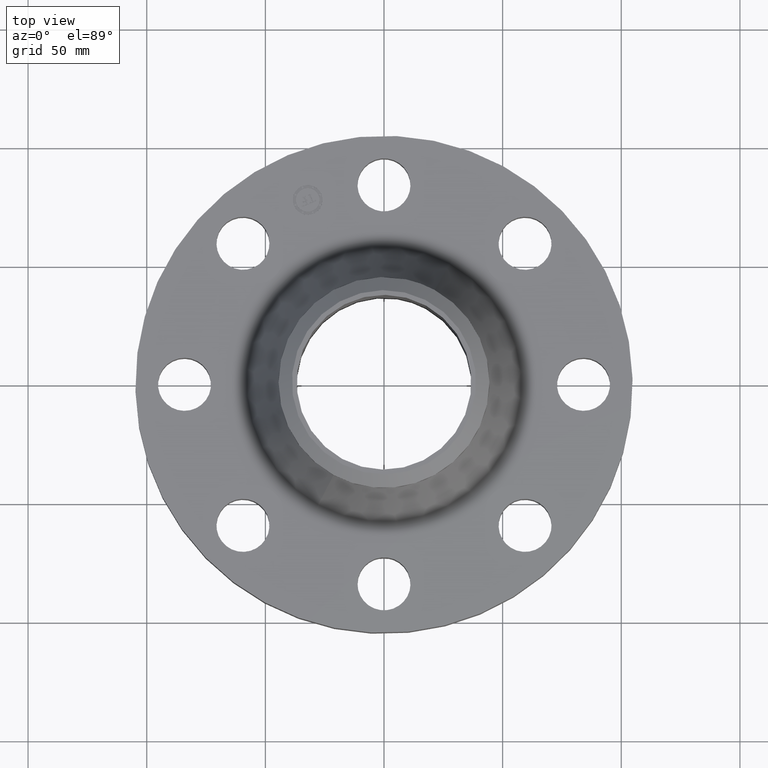
[diagram: clean part render]
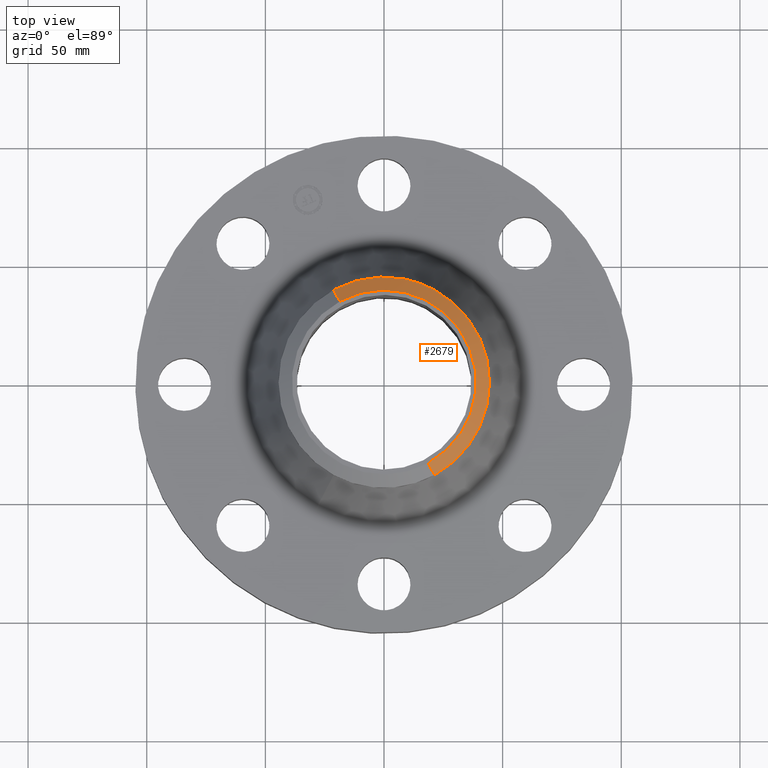
[diagram: same view with one face highlighted and labeled with its STEP entity id]
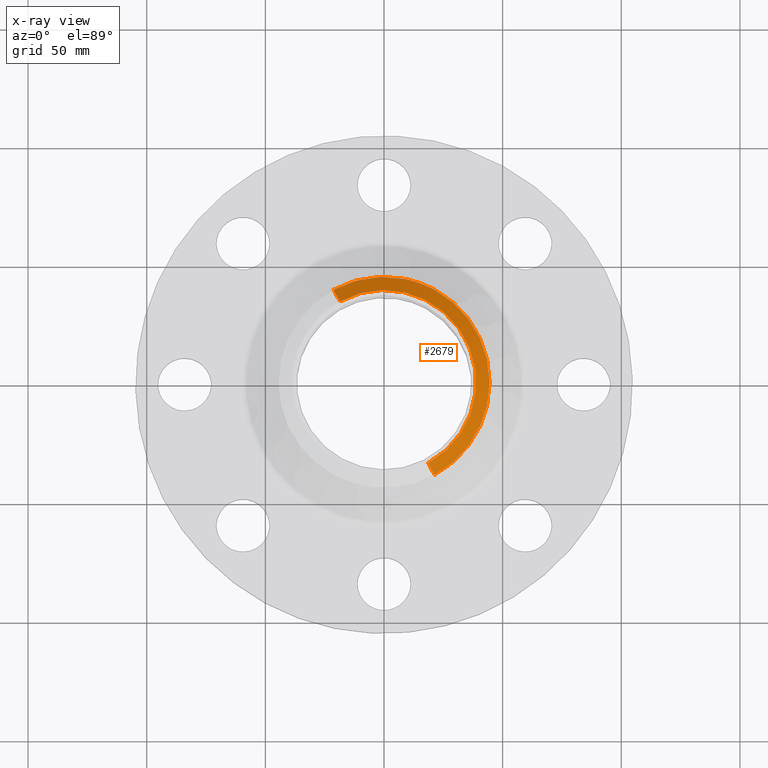
[diagram: x-ray of the same camera — body ghosted, the highlighted face saturated]
A machine part, top view. The second image highlights one B-rep face of the part: STEP entity #2679.
The next image is the same camera in x-ray: the body ghosted, the highlighted face saturated — about 0% of this face is hidden behind the body in this view.
In plain terms, the highlighted conical surface has half-angle 52.5 deg.
Its self-contained STEP definition (entity closure, byte-faithful):
#2010=AXIS2_PLACEMENT_3D('Circle Axis2P3D',#2008,#2009,$) ;
#2665=AXIS2_PLACEMENT_3D('Cone Axis2P3D',#2662,#2663,#2664) ;
#2669=AXIS2_PLACEMENT_3D('Circle Axis2P3D',#2667,#2668,$) ;
#1963=CARTESIAN_POINT('Vertex',(0.838994692563,1.53576948332,2.89022135152)) ;
#1977=CARTESIAN_POINT('Vertex',(-0.838994692564,1.53576948332,2.89022135152)) ;
#1981=CARTESIAN_POINT('Control Point',(-0.838994692564,1.53576948332,2.89022135152)) ;
#1982=CARTESIAN_POINT('Control Point',(-0.5318407959,1.70356842183,2.89022135152)) ;
#1983=CARTESIAN_POINT('Control Point',(-0.182740466362,1.79463337155,2.89022135151)) ;
#1984=CARTESIAN_POINT('Control Point',(0.182740466361,1.79463337155,2.8902213515)) ;
#1985=CARTESIAN_POINT('Control Point',(0.531840795899,1.70356842183,2.8902213515)) ;
#1986=CARTESIAN_POINT('Control Point',(0.838994692563,1.53576948332,2.89022135149)) ;
#2008=CARTESIAN_POINT('Axis2P3D Location',(0.,0.,2.89022135152)) ;
#2012=CARTESIAN_POINT('Vertex',(0.838994692564,-1.53576948332,2.89022135152)) ;
#2628=CARTESIAN_POINT('Line Origine',(0.785955882974,-1.43868259359,2.97511067575)) ;
#2632=CARTESIAN_POINT('Vertex',(0.73291707339,-1.34159570387,3.06000000001)) ;
#2639=CARTESIAN_POINT('Vertex',(-0.732917073391,1.34159570387,3.06000000001)) ;
#2642=CARTESIAN_POINT('Line Origine',(-0.785955882974,1.43868259359,2.97511067575)) ;
#2662=CARTESIAN_POINT('Axis2P3D Location',(0.,0.,3.06000000001)) ;
#2667=CARTESIAN_POINT('Axis2P3D Location',(0.,0.,3.06000000001)) ;
#2009=DIRECTION('Axis2P3D Direction',(-0.,0.,-0.0393700787402)) ;
#2629=DIRECTION('Vector Direction',(0.014974561121,-0.02741075027,-0.023966985394)) ;
#2643=DIRECTION('Vector Direction',(-0.014974561121,0.02741075027,-0.023966985394)) ;
#2663=DIRECTION('Axis2P3D Direction',(-0.,-0.,-0.0393700787402)) ;
#2664=DIRECTION('Axis2P3D XDirection',(-0.0188750212049,0.0345504945626,0.)) ;
#2668=DIRECTION('Axis2P3D Direction',(-0.,0.,-0.0393700787402)) ;
#2630=VECTOR('Line Direction',#2629,0.0393700787402) ;
#2644=VECTOR('Line Direction',#2643,0.0393700787402) ;
#2673=ORIENTED_EDGE('',*,*,#2646,.F.) ;
#2674=ORIENTED_EDGE('',*,*,#2671,.F.) ;
#2675=ORIENTED_EDGE('',*,*,#2634,.T.) ;
#2676=ORIENTED_EDGE('',*,*,#2014,.T.) ;
#2677=ORIENTED_EDGE('',*,*,#1987,.F.) ;
#2679=ADVANCED_FACE('PartBody',(#2678),#2666,.T.) ;
#1980=B_SPLINE_CURVE_WITH_KNOTS('',5,(#1981,#1982,#1983,#1984,#1985,#1986),.UNSPECIFIED.,.F.,.U.,(6,6),(-22.2250000002,22.2250000002),.UNSPECIFIED.) ;
#2011=CIRCLE('generated circle',#2010,1.75000000001) ;
#2670=CIRCLE('generated circle',#2669,1.52874015749) ;
#2666=CONICAL_SURFACE('Cone',#2665,1.52874015749,0.916297857297) ;
#1987=EDGE_CURVE('',#1978,#1964,#1980,.T.) ;
#2014=EDGE_CURVE('',#2013,#1964,#2011,.F.) ;
#2634=EDGE_CURVE('',#2633,#2013,#2631,.T.) ;
#2646=EDGE_CURVE('',#2640,#1978,#2645,.T.) ;
#2671=EDGE_CURVE('',#2633,#2640,#2670,.F.) ;
#2672=EDGE_LOOP('',(#2673,#2674,#2675,#2676,#2677)) ;
#2678=FACE_OUTER_BOUND('',#2672,.T.) ;
#2631=LINE('Line',#2628,#2630) ;
#2645=LINE('Line',#2642,#2644) ;
#1964=VERTEX_POINT('',#1963) ;
#1978=VERTEX_POINT('',#1977) ;
#2013=VERTEX_POINT('',#2012) ;
#2633=VERTEX_POINT('',#2632) ;
#2640=VERTEX_POINT('',#2639) ;